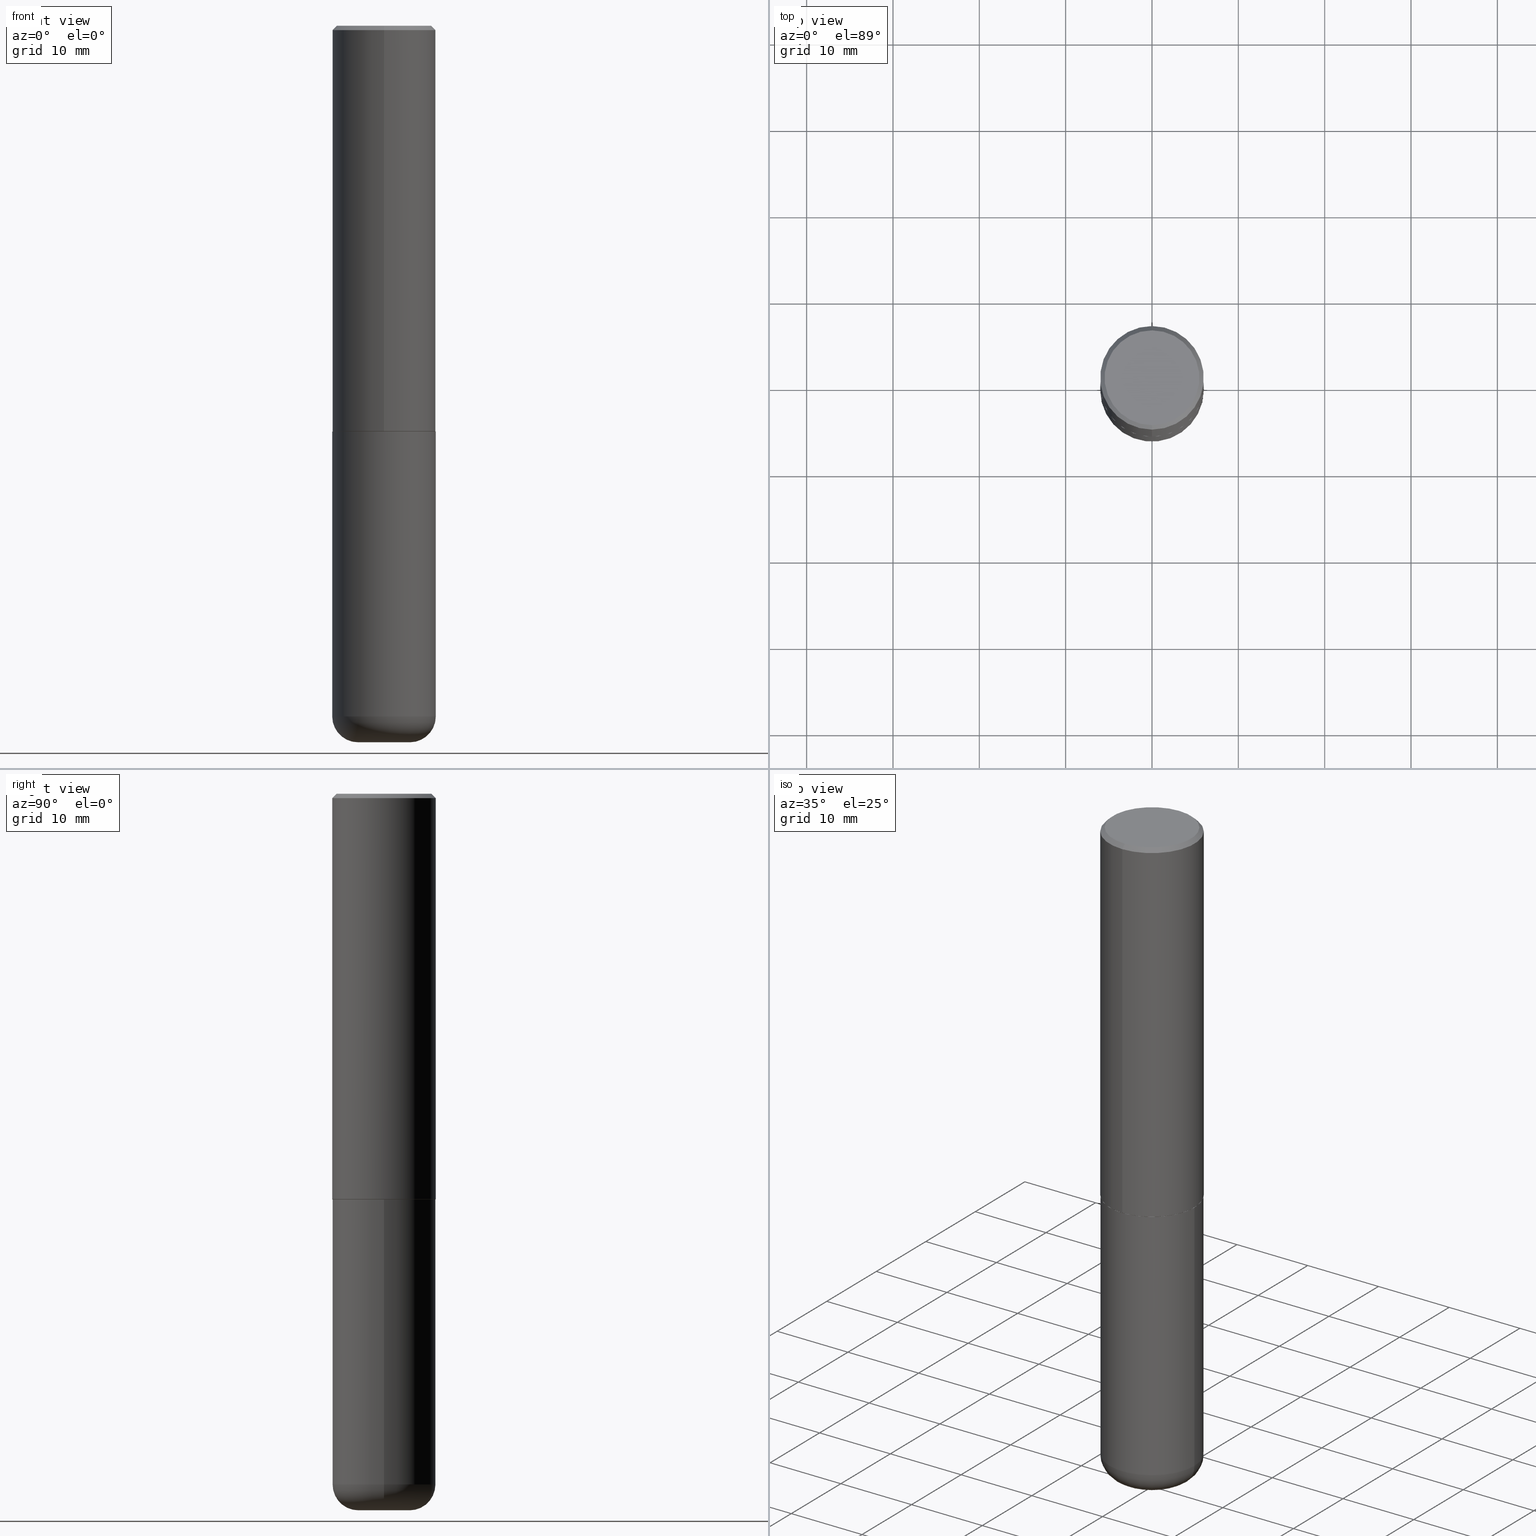
[diagram: canonical four-view strip — front | top / right | iso, engineering-drawing reading convention]
A machine part, canonical four-view strip (front | top / right | iso — engineering-drawing reading convention). The complete STEP part file that produces these views, byte-faithful:
ISO-10303-21;
HEADER;
FILE_DESCRIPTION (( 'STEP AP203' ),
    '1' );
FILE_NAME ('47558.STEP',
    '2024-03-06T11:14:41',
    ( '' ),
    ( '' ),
    'SwSTEP 2.0',
    'SolidWorks 2023',
    '' );
FILE_SCHEMA (( 'CONFIG_CONTROL_DESIGN' ));
ENDSEC;

DATA;
#1 = CC_DESIGN_SECURITY_CLASSIFICATION ( #150, ( #261 ) ) ;
#2 = DIRECTION ( 'NONE',  ( -2.445371925614294233E-29, 3.491620077334691546E-15, 1.000000000000000000 ) ) ;
#3 = DIRECTION ( 'NONE',  ( -6.982962677686265922E-15, -1.000000000000000000, 3.491620077334691152E-15 ) ) ;
#4 = DIRECTION ( 'NONE',  ( -2.445468806185136597E-29, 3.491481338843145583E-15, 1.000000000000000000 ) ) ;
#5 = DIRECTION ( 'NONE',  ( -2.445371925614294233E-29, 3.491620077334691546E-15, 1.000000000000000000 ) ) ;
#6 = CIRCLE ( 'NONE', #201, 0.1180999999999997607 ) ;
#7 = CARTESIAN_POINT ( 'NONE',  ( 1.854752379248561175E-28, 3.708345682062618425E-15, -3.267699999999999605 ) ) ;
#8 = EDGE_CURVE ( 'NONE', #283, #343, #222, .T. ) ;
#9 = DIRECTION ( 'NONE',  ( 1.000000000000000000, -6.982962677686266711E-15, 4.876176775795936353E-29 ) ) ;
#10 = LINE ( 'NONE', #97, #186 ) ;
#11 = DIRECTION ( 'NONE',  ( -1.000000000000000000, 6.982962677686265922E-15, -4.876176775795935793E-29 ) ) ;
#12 = ORIENTED_EDGE ( 'NONE', *, *, #245, .T. ) ;
#13 = AXIS2_PLACEMENT_3D ( 'NONE', #198, #318, #387 ) ;
#14 = CARTESIAN_POINT ( 'NONE',  ( 4.524916211156691287E-29, -6.460893791100115503E-15, -1.850400000000000489 ) ) ;
#15 = FACE_OUTER_BOUND ( 'NONE', #315, .T. ) ;
#16 = MECHANICAL_CONTEXT ( 'NONE', #240, 'mechanical' ) ;
#17 = CARTESIAN_POINT ( 'NONE',  ( 0.1181000000000000105, -1.223380146317249313E-14, -3.267699999999999605 ) ) ;
#18 = APPROVAL_ROLE ( '' ) ;
#19 = VECTOR ( 'NONE', #371, 39.37007874015748143 ) ;
#20 = AXIS2_PLACEMENT_3D ( 'NONE', #151, #172, #396 ) ;
#21 = EDGE_LOOP ( 'NONE', ( #51, #176 ) ) ;
#22 = CIRCLE ( 'NONE', #194, 0.2351999999999999924 ) ;
#23 = LINE ( 'NONE', #381, #39 ) ;
#24 = CARTESIAN_POINT ( 'NONE',  ( -0.1181000000000000383, -9.944215141480041685E-15, -3.267699999999999605 ) ) ;
#25 = ORIENTED_EDGE ( 'NONE', *, *, #58, .T. ) ;
#26 = EDGE_CURVE ( 'NONE', #278, #342, #32, .T. ) ;
#27 = CC_DESIGN_PERSON_AND_ORGANIZATION_ASSIGNMENT ( #110, #49, ( #261 ) ) ;
#28 = CIRCLE ( 'NONE', #20, 0.2361999999999999933 ) ;
#29 = ORIENTED_EDGE ( 'NONE', *, *, #64, .T. ) ;
#30 = DIRECTION ( 'NONE',  ( -2.445468806185136597E-29, 3.491481338843145583E-15, 1.000000000000000000 ) ) ;
#31 = DIRECTION ( 'NONE',  ( 1.000000000000000000, -6.982962677686263555E-15, 4.883557194083111780E-29 ) ) ;
#32 = LINE ( 'NONE', #414, #19 ) ;
#33 = FACE_OUTER_BOUND ( 'NONE', #317, .T. ) ;
#34 = ORIENTED_EDGE ( 'NONE', *, *, #84, .F. ) ;
#35 = ORIENTED_EDGE ( 'NONE', *, *, #341, .F. ) ;
#36 = CARTESIAN_POINT ( 'NONE',  ( -8.038070963430480451E-45, 1.147714573189292330E-30, 3.287054569996039822E-16 ) ) ;
#37 = CIRCLE ( 'NONE', #243, 0.2361999999999999933 ) ;
#38 = ORIENTED_EDGE ( 'NONE', *, *, #331, .F. ) ;
#39 = VECTOR ( 'NONE', #155, 39.37007874015748143 ) ;
#40 = CYLINDRICAL_SURFACE ( 'NONE', #263, 0.2361999999999999933 ) ;
#41 = ORIENTED_EDGE ( 'NONE', *, *, #282, .F. ) ;
#42 = FACE_OUTER_BOUND ( 'NONE', #351, .T. ) ;
#43 = EDGE_LOOP ( 'NONE', ( #406, #63, #183, #379 ) ) ;
#44 = EDGE_CURVE ( 'NONE', #190, #344, #156, .T. ) ;
#45 = CYLINDRICAL_SURFACE ( 'NONE', #281, 0.2361999999999999933 ) ;
#46 = VECTOR ( 'NONE', #350, 39.37007874015748143 ) ;
#47 = CARTESIAN_POINT ( 'NONE',  ( -1.551844647095918761E-15, -0.2161999999999996425, 1.083593717719362934E-15 ) ) ;
#48 = APPROVAL_STATUS ( 'not_yet_approved' ) ;
#49 = PERSON_AND_ORGANIZATION_ROLE ( 'design_supplier' ) ;
#50 = CC_DESIGN_DATE_AND_TIME_ASSIGNMENT ( #242, #57, ( #150 ) ) ;
#51 = ORIENTED_EDGE ( 'NONE', *, *, #382, .F. ) ;
#52 = VERTEX_POINT ( 'NONE', #280 ) ;
#53 = AXIS2_PLACEMENT_3D ( 'NONE', #307, #136, #257 ) ;
#54 = APPLICATION_PROTOCOL_DEFINITION ( 'international standard', 'config_control_design', 1994, #240 ) ;
#55 = DIRECTION ( 'NONE',  ( -2.445371925614294233E-29, 3.491620077334691546E-15, 1.000000000000000000 ) ) ;
#56 = CARTESIAN_POINT ( 'NONE',  ( -0.2361999999999999933, -7.050401405242508548E-15, -1.850400000000000267 ) ) ;
#57 = DATE_TIME_ROLE ( 'classification_date' ) ;
#58 = EDGE_CURVE ( 'NONE', #61, #190, #134, .T. ) ;
#59 = ORIENTED_EDGE ( 'NONE', *, *, #331, .T. ) ;
#60 = ORIENTED_EDGE ( 'NONE', *, *, #195, .F. ) ;
#61 = VERTEX_POINT ( 'NONE', #409 ) ;
#62 = ORIENTED_EDGE ( 'NONE', *, *, #388, .T. ) ;
#63 = ORIENTED_EDGE ( 'NONE', *, *, #337, .T. ) ;
#64 = EDGE_CURVE ( 'NONE', #283, #52, #302, .T. ) ;
#65 = CARTESIAN_POINT ( 'NONE',  ( 0.2361999999999998823, -1.264614540928986883E-14, -3.149600000000000399 ) ) ;
#66 = VERTEX_POINT ( 'NONE', #407 ) ;
#67 = PLANE ( 'NONE',  #212 ) ;
#68 = DIRECTION ( 'NONE',  ( -2.445468806185136597E-29, 3.491481338843145583E-15, 1.000000000000000000 ) ) ;
#69 = CLOSED_SHELL ( 'NONE', ( #354, #111, #364, #404, #217, #347 ) ) ;
#70 = FACE_OUTER_BOUND ( 'NONE', #43, .T. ) ;
#71 = PLANE ( 'NONE',  #385 ) ;
#72 = DIRECTION ( 'NONE',  ( 1.000000000000000000, -6.982962677686270655E-15, 0.000000000000000000 ) ) ;
#73 = CYLINDRICAL_SURFACE ( 'NONE', #348, 0.2362000000000001043 ) ;
#74 = AXIS2_PLACEMENT_3D ( 'NONE', #416, #185, #31 ) ;
#75 = PERSON_AND_ORGANIZATION ( #380, #129 ) ;
#76 = CARTESIAN_POINT ( 'NONE',  ( -1.620449627073635079E-15, -0.2362000000000000766, -0.01999999999999922673 ) ) ;
#77 = EDGE_CURVE ( 'NONE', #237, #66, #22, .T. ) ;
#78 = DATE_AND_TIME ( #214, #161 ) ;
#79 = ORIENTED_EDGE ( 'NONE', *, *, #187, .F. ) ;
#80 = PERSON_AND_ORGANIZATION ( #380, #129 ) ;
#81 = DIRECTION ( 'NONE',  ( -4.851104656540961908E-15, -0.7071067811865496822, -0.7071067811865453523 ) ) ;
#82 = AXIS2_PLACEMENT_3D ( 'NONE', #367, #209, #333 ) ;
#83 = AXIS2_PLACEMENT_3D ( 'NONE', #126, #68, #355 ) ;
#84 = EDGE_CURVE ( 'NONE', #343, #344, #215, .T. ) ;
#85 = CARTESIAN_POINT ( 'NONE',  ( 4.524916211156691287E-29, -6.460893791100115503E-15, -1.850400000000000489 ) ) ;
#86 = DIRECTION ( 'NONE',  ( -6.982962677686265133E-15, -1.000000000000000000, 3.484499991918703113E-15 ) ) ;
#87 = DIRECTION ( 'NONE',  ( -2.445371925614294233E-29, 3.491620077334691546E-15, 1.000000000000000000 ) ) ;
#88 = LOCAL_TIME ( 6, 14, 41.00000000000000000, #236 ) ;
#89 = DIRECTION ( 'NONE',  ( -2.445468806185136877E-29, 3.491481338843145188E-15, 1.000000000000000000 ) ) ;
#90 = AXIS2_PLACEMENT_3D ( 'NONE', #249, #30, #120 ) ;
#91 = PRODUCT_DEFINITION ( 'UNKNOWN', '', #261, #179 ) ;
#92 = CC_DESIGN_DATE_AND_TIME_ASSIGNMENT ( #78, #271, ( #91 ) ) ;
#93 = CARTESIAN_POINT ( 'NONE',  ( -1.649375784469452349E-15, -0.2362000000000066546, -1.849399999999999489 ) ) ;
#94 = ORIENTED_EDGE ( 'NONE', *, *, #44, .T. ) ;
#95 = ORIENTED_EDGE ( 'NONE', *, *, #412, .T. ) ;
#96 = FACE_OUTER_BOUND ( 'NONE', #218, .T. ) ;
#97 = CARTESIAN_POINT ( 'NONE',  ( -1.642392821791764560E-15, -0.2352000000000064595, -1.850399999999999823 ) ) ;
#98 = EDGE_LOOP ( 'NONE', ( #221, #188, #59, #115 ) ) ;
#99 = DIRECTION ( 'NONE',  ( -6.982962677686265922E-15, -1.000000000000000000, 3.491620077334691941E-15 ) ) ;
#100 = FACE_OUTER_BOUND ( 'NONE', #107, .T. ) ;
#101 = DIRECTION ( 'NONE',  ( 1.000000000000000000, -6.982962677686269077E-15, 0.000000000000000000 ) ) ;
#102 = CARTESIAN_POINT ( 'NONE',  ( 4.524916211156691287E-29, -6.460893791100115503E-15, -1.850400000000000489 ) ) ;
#103 = EDGE_LOOP ( 'NONE', ( #410, #79 ) ) ;
#104 = PERSON_AND_ORGANIZATION ( #380, #129 ) ;
#105 = ADVANCED_FACE ( 'NONE', ( #320 ), #252, .F. ) ;
#106 = PERSON_AND_ORGANIZATION ( #380, #129 ) ;
#107 = EDGE_LOOP ( 'NONE', ( #357, #294, #411, #360 ) ) ;
#108 = PERSON_AND_ORGANIZATION_ROLE ( 'design_owner' ) ;
#109 = ORIENTED_EDGE ( 'NONE', *, *, #238, .F. ) ;
#110 = PERSON_AND_ORGANIZATION ( #380, #129 ) ;
#111 = ADVANCED_FACE ( 'NONE', ( #338 ), #399, .T. ) ;
#112 = DIRECTION ( 'NONE',  ( -2.445371925614294233E-29, 3.491620077334691546E-15, 1.000000000000000000 ) ) ;
#113 = MANIFOLD_SOLID_BREP ( 'Body-Move/Copy2[1]', #69 ) ;
#114 = CONICAL_SURFACE ( 'NONE', #223, 0.2351999999999999924, 0.7853981633973801113 ) ;
#115 = ORIENTED_EDGE ( 'NONE', *, *, #8, .F. ) ;
#116 = DIRECTION ( 'NONE',  ( -2.445371925614294233E-29, 3.491620077334691546E-15, 1.000000000000000000 ) ) ;
#117 = DIRECTION ( 'NONE',  ( -6.982962677686265133E-15, -1.000000000000000000, 3.469747663417773847E-15 ) ) ;
#118 = AXIS2_PLACEMENT_3D ( 'NONE', #213, #55, #180 ) ;
#119 = ADVANCED_FACE ( 'NONE', ( #33 ), #375, .T. ) ;
#120 = DIRECTION ( 'NONE',  ( 1.000000000000000000, -6.982962677686263555E-15, 4.883557194083111780E-29 ) ) ;
#121 = CC_DESIGN_PERSON_AND_ORGANIZATION_ASSIGNMENT ( #339, #369, ( #150 ) ) ;
#122 = APPROVAL_PERSON_ORGANIZATION ( #182, #311, #174 ) ;
#123 = CARTESIAN_POINT ( 'NONE',  ( 0.2361999999999999933, -8.110012853864854101E-15, -1.850400000000000267 ) ) ;
#124 = CARTESIAN_POINT ( 'NONE',  ( 4.522470839231075964E-29, -6.457402171022779437E-15, -1.849400000000000155 ) ) ;
#125 = CIRCLE ( 'NONE', #330, 0.1181000000000000105 ) ;
#126 = CARTESIAN_POINT ( 'NONE',  ( 7.702248551960706711E-29, -1.099676962482037231E-14, -3.149600000000000399 ) ) ;
#127 = DIRECTION ( 'NONE',  ( -1.000000000000000000, 6.982962677686265922E-15, -4.876176775795935793E-29 ) ) ;
#128 = CARTESIAN_POINT ( 'NONE',  ( 7.991058417971169471E-29, -1.140911357093774486E-14, -3.267699999999999605 ) ) ;
#129 = ORGANIZATION ( 'UNSPECIFIED', 'UNSPECIFIED', '' ) ;
#130 = DATE_AND_TIME ( #329, #248 ) ;
#131 = CARTESIAN_POINT ( 'NONE',  ( 4.524916211156691287E-29, -6.460893791100115503E-15, -1.850400000000000489 ) ) ;
#132 = ADVANCED_FACE ( 'NONE', ( #15 ), #377, .T. ) ;
#133 = APPROVAL_DATE_TIME ( #130, #311 ) ;
#134 = CIRCLE ( 'NONE', #118, 0.2161999999999996425 ) ;
#135 = CARTESIAN_POINT ( 'NONE',  ( 4.525095478964977394E-29, -6.460637069395357576E-15, -1.850400000000000267 ) ) ;
#136 = DIRECTION ( 'NONE',  ( 2.445371925614293953E-29, -3.491620077334691546E-15, -1.000000000000000000 ) ) ;
#137 = DIRECTION ( 'NONE',  ( 1.000000000000000000, -6.982962677686272233E-15, 0.000000000000000000 ) ) ;
#138 = CARTESIAN_POINT ( 'NONE',  ( 4.890743851228601113E-31, -6.983240154669400497E-17, -0.02000000000000005246 ) ) ;
#139 = ADVANCED_FACE ( 'NONE', ( #42 ), #73, .T. ) ;
#140 = APPLICATION_PROTOCOL_DEFINITION ( 'international standard', 'config_control_design', 1994, #392 ) ;
#141 = CLOSED_SHELL ( 'NONE', ( #299, #119, #132, #319, #139, #230, #105, #286 ) ) ;
#142 = CALENDAR_DATE ( 2024, 6, 3 ) ;
#143 = AXIS2_PLACEMENT_3D ( 'NONE', #169, #292, #204 ) ;
#144 = APPROVAL_ROLE ( '' ) ;
#145 = VERTEX_POINT ( 'NONE', #24 ) ;
#146 = CARTESIAN_POINT ( 'NONE',  ( 4.522470839231075964E-29, -6.457402171022779437E-15, -1.849400000000000155 ) ) ;
#147 = DATE_AND_TIME ( #142, #88 ) ;
#148 = LOCAL_TIME ( 6, 14, 41.00000000000000000, #268 ) ;
#149 = ORIENTED_EDGE ( 'NONE', *, *, #245, .F. ) ;
#150 = SECURITY_CLASSIFICATION ( '', '', #239 ) ;
#151 = CARTESIAN_POINT ( 'NONE',  ( 4.890743851228601113E-31, -6.983240154669400497E-17, -0.02000000000000005246 ) ) ;
#152 = UNCERTAINTY_MEASURE_WITH_UNIT (LENGTH_MEASURE( 1.000000000000000082E-05 ), #231, 'distance_accuracy_value', 'NONE');
#153 = VERTEX_POINT ( 'NONE', #398 ) ;
#154 = AXIS2_PLACEMENT_3D ( 'NONE', #124, #415, #117 ) ;
#155 = DIRECTION ( 'NONE',  ( 4.937700262164545676E-15, 0.7071067811865447972, -0.7071067811865502373 ) ) ;
#156 = LINE ( 'NONE', #76, #314 ) ;
#157 = FACE_OUTER_BOUND ( 'NONE', #306, .T. ) ;
#158 = ORIENTED_EDGE ( 'NONE', *, *, #26, .F. ) ;
#159 = ORIENTED_EDGE ( 'NONE', *, *, #77, .T. ) ;
#160 = EDGE_CURVE ( 'NONE', #344, #52, #28, .T. ) ;
#161 = LOCAL_TIME ( 6, 14, 41.00000000000000000, #334 ) ;
#162 = VERTEX_POINT ( 'NONE', #17 ) ;
#163 = CIRCLE ( 'NONE', #82, 0.2361999999999999933 ) ;
#164 = FACE_OUTER_BOUND ( 'NONE', #378, .T. ) ;
#165 = CC_DESIGN_PERSON_AND_ORGANIZATION_ASSIGNMENT ( #106, #108, ( #284 ) ) ;
#166 = CIRCLE ( 'NONE', #322, 0.2362000000000000210 ) ;
#167 = CARTESIAN_POINT ( 'NONE',  ( 0.000000000000000000, 0.000000000000000000, 0.000000000000000000 ) ) ;
#168 = PRODUCT_RELATED_PRODUCT_CATEGORY ( 'detail', '', ( #284 ) ) ;
#169 = CARTESIAN_POINT ( 'NONE',  ( 4.890743851228601113E-31, -6.983240154669400497E-17, -0.02000000000000005246 ) ) ;
#170 = DIRECTION ( 'NONE',  ( 1.000000000000000000, -6.982962677686266711E-15, 4.876176775795936353E-29 ) ) ;
#171 = CIRCLE ( 'NONE', #250, 0.2351999999999999924 ) ;
#172 = DIRECTION ( 'NONE',  ( -2.445371925614294233E-29, 3.491620077334691546E-15, 1.000000000000000000 ) ) ;
#173 = APPROVAL ( #208, 'UNSPECIFIED' ) ;
#174 = APPROVAL_ROLE ( '' ) ;
#175 = DIRECTION ( 'NONE',  ( 0.000000000000000000, 0.000000000000000000, 1.000000000000000000 ) ) ;
#176 = ORIENTED_EDGE ( 'NONE', *, *, #376, .F. ) ;
#177 = AXIS2_PLACEMENT_3D ( 'NONE', #36, #191, #3 ) ;
#178 = CALENDAR_DATE ( 2024, 6, 3 ) ;
#179 = DESIGN_CONTEXT ( 'detailed design', #392, 'design' ) ;
#180 = DIRECTION ( 'NONE',  ( -6.982962677686265922E-15, -1.000000000000000000, 3.491620077334691152E-15 ) ) ;
#181 = CARTESIAN_POINT ( 'NONE',  ( -1.642392821791764560E-15, -0.2352000000000064595, -1.850399999999999823 ) ) ;
#182 = PERSON_AND_ORGANIZATION ( #380, #129 ) ;
#183 = ORIENTED_EDGE ( 'NONE', *, *, #26, .T. ) ;
#184 = ORIENTED_EDGE ( 'NONE', *, *, #160, .F. ) ;
#185 = DIRECTION ( 'NONE',  ( -2.445468806185136597E-29, 3.491481338843145583E-15, 1.000000000000000000 ) ) ;
#186 = VECTOR ( 'NONE', #358, 39.37007874015748143 ) ;
#187 = EDGE_CURVE ( 'NONE', #66, #237, #171, .T. ) ;
#188 = ORIENTED_EDGE ( 'NONE', *, *, #187, .T. ) ;
#189 = CARTESIAN_POINT ( 'NONE',  ( 0.000000000000000000, 0.000000000000000000, 0.000000000000000000 ) ) ;
#190 = VERTEX_POINT ( 'NONE', #47 ) ;
#191 = DIRECTION ( 'NONE',  ( -2.445371925614294233E-29, 3.491620077334691546E-15, 1.000000000000000000 ) ) ;
#192 = ORIENTED_EDGE ( 'NONE', *, *, #256, .T. ) ;
#193 = ORIENTED_EDGE ( 'NONE', *, *, #337, .F. ) ;
#194 = AXIS2_PLACEMENT_3D ( 'NONE', #85, #112, #244 ) ;
#195 = EDGE_CURVE ( 'NONE', #52, #344, #163, .T. ) ;
#196 = CIRCLE ( 'NONE', #13, 0.1180999999999997607 ) ;
#197 = EDGE_LOOP ( 'NONE', ( #210, #324, #255, #211 ) ) ;
#198 = CARTESIAN_POINT ( 'NONE',  ( -0.1180999999999999966, -1.015761865388769332E-14, -3.149600000000000399 ) ) ;
#199 = PRODUCT_DEFINITION_SHAPE ( 'NONE', 'NONE',  #91 ) ;
#200 = CARTESIAN_POINT ( 'NONE',  ( 0.1180999999999999966, -1.182145751705512057E-14, -3.149600000000000399 ) ) ;
#201 = AXIS2_PLACEMENT_3D ( 'NONE', #200, #264, #72 ) ;
#202 = FACE_OUTER_BOUND ( 'NONE', #397, .T. ) ;
#203 = CARTESIAN_POINT ( 'NONE',  ( 0.000000000000000000, 0.000000000000000000, 0.000000000000000000 ) ) ;
#204 = DIRECTION ( 'NONE',  ( 6.982962677686265922E-15, 1.000000000000000000, -3.487819265831411744E-15 ) ) ;
#205 = APPROVAL ( #48, 'UNSPECIFIED' ) ;
#206 = CIRCLE ( 'NONE', #154, 0.2362000000000002153 ) ;
#207 = DIRECTION ( 'NONE',  ( -2.445371925614293953E-29, 3.491620077334691546E-15, 1.000000000000000000 ) ) ;
#208 = APPROVAL_STATUS ( 'not_yet_approved' ) ;
#209 = DIRECTION ( 'NONE',  ( -2.445371925614294233E-29, 3.491620077334691546E-15, 1.000000000000000000 ) ) ;
#210 = ORIENTED_EDGE ( 'NONE', *, *, #382, .T. ) ;
#211 = ORIENTED_EDGE ( 'NONE', *, *, #395, .F. ) ;
#212 = AXIS2_PLACEMENT_3D ( 'NONE', #7, #391, #127 ) ;
#213 = CARTESIAN_POINT ( 'NONE',  ( -8.038070963430480451E-45, 1.147714573189292330E-30, 3.287054569996039822E-16 ) ) ;
#214 = CALENDAR_DATE ( 2024, 6, 3 ) ;
#215 = LINE ( 'NONE', #216, #366 ) ;
#216 = CARTESIAN_POINT ( 'NONE',  ( -1.649375784469496722E-15, -0.2362000000000001043, 8.247206622664545710E-16 ) ) ;
#217 = ADVANCED_FACE ( 'NONE', ( #164 ), #390, .T. ) ;
#218 = EDGE_LOOP ( 'NONE', ( #95, #192, #41, #158 ) ) ;
#219 = DIRECTION ( 'NONE',  ( -6.982962677686265922E-15, -1.000000000000000000, 3.491620077334691546E-15 ) ) ;
#220 = ORIENTED_EDGE ( 'NONE', *, *, #395, .T. ) ;
#221 = ORIENTED_EDGE ( 'NONE', *, *, #303, .F. ) ;
#222 = CIRCLE ( 'NONE', #241, 0.2362000000000002153 ) ;
#223 = AXIS2_PLACEMENT_3D ( 'NONE', #14, #2, #323 ) ;
#224 = EDGE_CURVE ( 'NONE', #61, #52, #23, .T. ) ;
#225 = DIRECTION ( 'NONE',  ( -2.445468806185136597E-29, 3.491481338843145583E-15, 1.000000000000000000 ) ) ;
#226 = ORIENTED_EDGE ( 'NONE', *, *, #84, .T. ) ;
#227 = ADVANCED_BREP_SHAPE_REPRESENTATION ( '47558', ( #113, #267, #368 ), #297 ) ;
#228 = CIRCLE ( 'NONE', #177, 0.2161999999999996425 ) ;
#229 = DIRECTION ( 'NONE',  ( -2.445468806185136597E-29, 3.491481338843145583E-15, 1.000000000000000000 ) ) ;
#230 = ADVANCED_FACE ( 'NONE', ( #279 ), #373, .T. ) ;
#231 =( CONVERSION_BASED_UNIT ( 'INCH', #325 ) LENGTH_UNIT ( ) NAMED_UNIT ( #251 ) );
#232 = DIRECTION ( 'NONE',  ( -2.445371925614294233E-29, 3.491620077334691546E-15, 1.000000000000000000 ) ) ;
#233 = PERSON_AND_ORGANIZATION_ROLE ( 'creator' ) ;
#234 = AXIS2_PLACEMENT_3D ( 'NONE', #138, #394, #327 ) ;
#235 = VERTEX_POINT ( 'NONE', #56 ) ;
#236 = COORDINATED_UNIVERSAL_TIME_OFFSET ( 5, 0, .BEHIND. ) ;
#237 = VERTEX_POINT ( 'NONE', #181 ) ;
#238 = EDGE_CURVE ( 'NONE', #190, #61, #228, .T. ) ;
#239 = SECURITY_CLASSIFICATION_LEVEL ( 'unclassified' ) ;
#240 = APPLICATION_CONTEXT ( 'configuration controlled 3d designs of mechanical parts and assemblies' ) ;
#241 = AXIS2_PLACEMENT_3D ( 'NONE', #146, #272, #403 ) ;
#242 = DATE_AND_TIME ( #273, #312 ) ;
#243 = AXIS2_PLACEMENT_3D ( 'NONE', #135, #352, #266 ) ;
#244 = DIRECTION ( 'NONE',  ( -6.982962677686265133E-15, -1.000000000000000000, 3.484499991918703113E-15 ) ) ;
#245 = EDGE_CURVE ( 'NONE', #343, #283, #206, .T. ) ;
#246 = APPROVAL_PERSON_ORGANIZATION ( #75, #173, #144 ) ;
#247 = LINE ( 'NONE', #313, #296 ) ;
#248 = LOCAL_TIME ( 6, 14, 41.00000000000000000, #400 ) ;
#249 = CARTESIAN_POINT ( 'NONE',  ( 7.702248551960706711E-29, -1.099676962482037231E-14, -3.149600000000000399 ) ) ;
#250 = AXIS2_PLACEMENT_3D ( 'NONE', #102, #232, #365 ) ;
#251 = DIMENSIONAL_EXPONENTS ( 1.000000000000000000, 0.000000000000000000, 0.000000000000000000, 0.000000000000000000, 0.000000000000000000, 0.000000000000000000, 0.000000000000000000 ) ;
#252 = PLANE ( 'NONE',  #316 ) ;
#253 = ORIENTED_EDGE ( 'NONE', *, *, #303, .T. ) ;
#254 = AXIS2_PLACEMENT_3D ( 'NONE', #258, #225, #137 ) ;
#255 = ORIENTED_EDGE ( 'NONE', *, *, #412, .F. ) ;
#256 = EDGE_CURVE ( 'NONE', #153, #235, #247, .T. ) ;
#257 = DIRECTION ( 'NONE',  ( 6.982962677686265922E-15, 1.000000000000000000, -3.491620077334691546E-15 ) ) ;
#258 = CARTESIAN_POINT ( 'NONE',  ( 7.991058417971169471E-29, -1.140911357093774486E-14, -3.267699999999999605 ) ) ;
#259 = FACE_OUTER_BOUND ( 'NONE', #274, .T. ) ;
#260 = SHAPE_DEFINITION_REPRESENTATION ( #199, #227 ) ;
#261 = PRODUCT_DEFINITION_FORMATION_WITH_SPECIFIED_SOURCE ( 'ANY', '', #284, .NOT_KNOWN. ) ;
#262 = DIRECTION ( 'NONE',  ( -2.445468806185136597E-29, 3.491481338843145583E-15, 1.000000000000000000 ) ) ;
#263 = AXIS2_PLACEMENT_3D ( 'NONE', #167, #290, #9 ) ;
#264 = DIRECTION ( 'NONE',  ( -6.982962677686266711E-15, -1.000000000000000000, 3.491481338843145583E-15 ) ) ;
#265 = LINE ( 'NONE', #288, #46 ) ;
#266 = DIRECTION ( 'NONE',  ( 1.000000000000000000, -6.982962677686269077E-15, 0.000000000000000000 ) ) ;
#267 = MANIFOLD_SOLID_BREP ( 'Body-Move/Copy2[2]', #141 ) ;
#268 = COORDINATED_UNIVERSAL_TIME_OFFSET ( 5, 0, .BEHIND. ) ;
#269 = APPROVAL_DATE_TIME ( #147, #205 ) ;
#270 = CC_DESIGN_PERSON_AND_ORGANIZATION_ASSIGNMENT ( #80, #401, ( #261 ) ) ;
#271 = DATE_TIME_ROLE ( 'creation_date' ) ;
#272 = DIRECTION ( 'NONE',  ( -2.445371925614294233E-29, 3.491620077334691546E-15, 1.000000000000000000 ) ) ;
#273 = CALENDAR_DATE ( 2024, 6, 3 ) ;
#274 = EDGE_LOOP ( 'NONE', ( #159, #253, #149, #38 ) ) ;
#275 = CC_DESIGN_PERSON_AND_ORGANIZATION_ASSIGNMENT ( #104, #233, ( #91 ) ) ;
#276 = CIRCLE ( 'NONE', #408, 0.2361999999999999933 ) ;
#277 = ORIENTED_EDGE ( 'NONE', *, *, #8, .T. ) ;
#278 = VERTEX_POINT ( 'NONE', #65 ) ;
#279 = FACE_OUTER_BOUND ( 'NONE', #98, .T. ) ;
#280 = CARTESIAN_POINT ( 'NONE',  ( 1.649375784469496525E-15, 0.2361999999999999378, -0.02000000000000087472 ) ) ;
#281 = AXIS2_PLACEMENT_3D ( 'NONE', #203, #229, #170 ) ;
#282 = EDGE_CURVE ( 'NONE', #342, #235, #276, .T. ) ;
#283 = VERTEX_POINT ( 'NONE', #362 ) ;
#284 = PRODUCT ( '47558', '47558', '', ( #16 ) ) ;
#285 = DIRECTION ( 'NONE',  ( 1.000000000000000000, -6.982962677686264344E-15, 0.000000000000000000 ) ) ;
#286 = ADVANCED_FACE ( 'NONE', ( #157 ), #310, .F. ) ;
#287 =( NAMED_UNIT ( * ) PLANE_ANGLE_UNIT ( ) SI_UNIT ( $, .RADIAN. ) );
#288 = CARTESIAN_POINT ( 'NONE',  ( 1.671196514507800548E-15, 0.2351999999999935531, -1.850400000000001377 ) ) ;
#289 = AXIS2_PLACEMENT_3D ( 'NONE', #309, #356, #99 ) ;
#290 = DIRECTION ( 'NONE',  ( -2.445468806185136597E-29, 3.491481338843145583E-15, 1.000000000000000000 ) ) ;
#291 =( NAMED_UNIT ( * ) SI_UNIT ( $, .STERADIAN. ) SOLID_ANGLE_UNIT ( ) );
#292 = DIRECTION ( 'NONE',  ( 2.445371925614294233E-29, -3.491620077334691546E-15, -1.000000000000000000 ) ) ;
#293 = DIRECTION ( 'NONE',  ( -2.445468806185136597E-29, 3.491481338843145583E-15, 1.000000000000000000 ) ) ;
#294 = ORIENTED_EDGE ( 'NONE', *, *, #58, .F. ) ;
#295 = ORIENTED_EDGE ( 'NONE', *, *, #376, .T. ) ;
#296 = VECTOR ( 'NONE', #89, 39.37007874015748143 ) ;
#297 =( GEOMETRIC_REPRESENTATION_CONTEXT ( 3 ) GLOBAL_UNCERTAINTY_ASSIGNED_CONTEXT ( ( #152 ) ) GLOBAL_UNIT_ASSIGNED_CONTEXT ( ( #231, #287, #291 ) ) REPRESENTATION_CONTEXT ( 'NONE', 'WORKASPACE' ) );
#298 = DATE_AND_TIME ( #178, #148 ) ;
#299 = ADVANCED_FACE ( 'NONE', ( #259 ), #114, .T. ) ;
#300 = DIRECTION ( 'NONE',  ( 1.000000000000000000, 0.000000000000000000, 0.000000000000000000 ) ) ;
#301 = CIRCLE ( 'NONE', #254, 0.1181000000000000105 ) ;
#302 = LINE ( 'NONE', #374, #370 ) ;
#303 = EDGE_CURVE ( 'NONE', #66, #283, #265, .T. ) ;
#304 = APPROVAL_STATUS ( 'not_yet_approved' ) ;
#305 = CC_DESIGN_APPROVAL ( #205, ( #261 ) ) ;
#306 = EDGE_LOOP ( 'NONE', ( #25, #383 ) ) ;
#307 = CARTESIAN_POINT ( 'NONE',  ( 1.509716530915768154E-15, 0.2161999999999996425, -5.905355322199570835E-16 ) ) ;
#308 = AXIS2_PLACEMENT_3D ( 'NONE', #413, #116, #86 ) ;
#309 = CARTESIAN_POINT ( 'NONE',  ( 0.000000000000000000, 0.000000000000000000, 0.000000000000000000 ) ) ;
#310 = PLANE ( 'NONE',  #53 ) ;
#311 = APPROVAL ( #304, 'UNSPECIFIED' ) ;
#312 = LOCAL_TIME ( 6, 14, 41.00000000000000000, #336 ) ;
#313 = CARTESIAN_POINT ( 'NONE',  ( -0.2361999999999999933, 1.678301941865356591E-15, -1.161852468318208757E-29 ) ) ;
#314 = VECTOR ( 'NONE', #81, 39.37007874015748143 ) ;
#315 = EDGE_LOOP ( 'NONE', ( #109, #94, #345, #335 ) ) ;
#316 = AXIS2_PLACEMENT_3D ( 'NONE', #131, #207, #219 ) ;
#317 = EDGE_LOOP ( 'NONE', ( #12, #29, #184, #34 ) ) ;
#318 = DIRECTION ( 'NONE',  ( 7.105427357601001859E-15, 1.000000000000000000, -3.491481338843145583E-15 ) ) ;
#319 = ADVANCED_FACE ( 'NONE', ( #100 ), #417, .T. ) ;
#320 = FACE_OUTER_BOUND ( 'NONE', #103, .T. ) ;
#321 = CARTESIAN_POINT ( 'NONE',  ( -1.620449627073635079E-15, -0.2362000000000000766, -0.01999999999999922673 ) ) ;
#322 = AXIS2_PLACEMENT_3D ( 'NONE', #359, #262, #285 ) ;
#323 = DIRECTION ( 'NONE',  ( -6.982962677686265133E-15, -1.000000000000000000, 3.484499991918703113E-15 ) ) ;
#324 = ORIENTED_EDGE ( 'NONE', *, *, #341, .T. ) ;
#325 = LENGTH_MEASURE_WITH_UNIT ( LENGTH_MEASURE( 0.02539999999999999897 ), #393 );
#326 = DIRECTION ( 'NONE',  ( 2.438088387897960049E-29, -3.491481338843145188E-15, -1.000000000000000000 ) ) ;
#327 = DIRECTION ( 'NONE',  ( 6.982962677686265922E-15, 1.000000000000000000, -3.487819265831411744E-15 ) ) ;
#328 = CARTESIAN_POINT ( 'NONE',  ( 4.525095478964977394E-29, -6.460637069395357576E-15, -1.850400000000000267 ) ) ;
#329 = CALENDAR_DATE ( 2024, 6, 3 ) ;
#330 = AXIS2_PLACEMENT_3D ( 'NONE', #128, #4, #349 ) ;
#331 = EDGE_CURVE ( 'NONE', #237, #343, #10, .T. ) ;
#332 = PERSON_AND_ORGANIZATION ( #380, #129 ) ;
#333 = DIRECTION ( 'NONE',  ( -6.982962677686265922E-15, -1.000000000000000000, 3.487819265831411744E-15 ) ) ;
#334 = COORDINATED_UNIVERSAL_TIME_OFFSET ( 5, 0, .BEHIND. ) ;
#335 = ORIENTED_EDGE ( 'NONE', *, *, #224, .F. ) ;
#336 = COORDINATED_UNIVERSAL_TIME_OFFSET ( 5, 0, .BEHIND. ) ;
#337 = EDGE_CURVE ( 'NONE', #153, #278, #166, .T. ) ;
#338 = FACE_OUTER_BOUND ( 'NONE', #197, .T. ) ;
#339 = PERSON_AND_ORGANIZATION ( #380, #129 ) ;
#340 = DIRECTION ( 'NONE',  ( -2.445371925614294233E-29, 3.491620077334691546E-15, 1.000000000000000000 ) ) ;
#341 = EDGE_CURVE ( 'NONE', #145, #153, #196, .T. ) ;
#342 = VERTEX_POINT ( 'NONE', #123 ) ;
#343 = VERTEX_POINT ( 'NONE', #93 ) ;
#344 = VERTEX_POINT ( 'NONE', #321 ) ;
#345 = ORIENTED_EDGE ( 'NONE', *, *, #160, .T. ) ;
#346 = ORIENTED_EDGE ( 'NONE', *, *, #64, .F. ) ;
#347 = ADVANCED_FACE ( 'NONE', ( #386 ), #67, .T. ) ;
#348 = AXIS2_PLACEMENT_3D ( 'NONE', #189, #5, #418 ) ;
#349 = DIRECTION ( 'NONE',  ( 1.000000000000000000, -6.982962677686272233E-15, 0.000000000000000000 ) ) ;
#350 = DIRECTION ( 'NONE',  ( 5.024295867787719235E-15, 0.7071067811865017205, 0.7071067811865933139 ) ) ;
#351 = EDGE_LOOP ( 'NONE', ( #346, #277, #226, #60 ) ) ;
#352 = DIRECTION ( 'NONE',  ( -2.445468806185136597E-29, 3.491481338843145583E-15, 1.000000000000000000 ) ) ;
#353 = CIRCLE ( 'NONE', #83, 0.2362000000000000210 ) ;
#354 = ADVANCED_FACE ( 'NONE', ( #96 ), #40, .T. ) ;
#355 = DIRECTION ( 'NONE',  ( 1.000000000000000000, -6.982962677686264344E-15, 0.000000000000000000 ) ) ;
#356 = DIRECTION ( 'NONE',  ( -2.445371925614294233E-29, 3.491620077334691546E-15, 1.000000000000000000 ) ) ;
#357 = ORIENTED_EDGE ( 'NONE', *, *, #44, .F. ) ;
#358 = DIRECTION ( 'NONE',  ( -4.937700262164211199E-15, -0.7071067811864968355, 0.7071067811865981989 ) ) ;
#359 = CARTESIAN_POINT ( 'NONE',  ( 7.702248551960706711E-29, -1.099676962482037231E-14, -3.149600000000000399 ) ) ;
#360 = ORIENTED_EDGE ( 'NONE', *, *, #195, .T. ) ;
#361 = CC_DESIGN_APPROVAL ( #173, ( #91 ) ) ;
#362 = CARTESIAN_POINT ( 'NONE',  ( 1.678301941865380454E-15, 0.2361999999999937760, -1.849400000000001043 ) ) ;
#363 = CC_DESIGN_APPROVAL ( #311, ( #150 ) ) ;
#364 = ADVANCED_FACE ( 'NONE', ( #202 ), #71, .F. ) ;
#365 = DIRECTION ( 'NONE',  ( -6.982962677686265133E-15, -1.000000000000000000, 3.484499991918703113E-15 ) ) ;
#366 = VECTOR ( 'NONE', #340, 39.37007874015748143 ) ;
#367 = CARTESIAN_POINT ( 'NONE',  ( 4.890743851228601113E-31, -6.983240154669400497E-17, -0.02000000000000005246 ) ) ;
#368 = AXIS2_PLACEMENT_3D ( 'NONE', #405, #175, #300 ) ;
#369 = PERSON_AND_ORGANIZATION_ROLE ( 'classification_officer' ) ;
#370 = VECTOR ( 'NONE', #87, 39.37007874015748143 ) ;
#371 = DIRECTION ( 'NONE',  ( -2.445468806185136877E-29, 3.491481338843145188E-15, 1.000000000000000000 ) ) ;
#372 = APPROVAL_DATE_TIME ( #298, #173 ) ;
#373 = CONICAL_SURFACE ( 'NONE', #308, 0.2351999999999999924, 0.7853981633973801113 ) ;
#374 = CARTESIAN_POINT ( 'NONE',  ( 1.678301941865357183E-15, 0.2362000000000001043, -8.247206622664545710E-16 ) ) ;
#375 = CYLINDRICAL_SURFACE ( 'NONE', #289, 0.2362000000000001043 ) ;
#376 = EDGE_CURVE ( 'NONE', #145, #162, #125, .T. ) ;
#377 = CONICAL_SURFACE ( 'NONE', #234, 0.2361999999999999933, 0.7853981633974479459 ) ;
#378 = EDGE_LOOP ( 'NONE', ( #35, #295, #220, #193 ) ) ;
#379 = ORIENTED_EDGE ( 'NONE', *, *, #388, .F. ) ;
#380 = PERSON ( 'UNSPECIFIED', 'UNSPECIFIED', 'UNSPECIFIED', ('UNSPECIFIED'), ('UNSPECIFIED'), ('UNSPECIFIED') ) ;
#381 = CARTESIAN_POINT ( 'NONE',  ( 1.649375784469496525E-15, 0.2361999999999999378, -0.02000000000000087472 ) ) ;
#382 = EDGE_CURVE ( 'NONE', #162, #145, #301, .T. ) ;
#383 = ORIENTED_EDGE ( 'NONE', *, *, #238, .T. ) ;
#384 = CARTESIAN_POINT ( 'NONE',  ( 4.525095478964977394E-29, -6.460637069395357576E-15, -1.850400000000000267 ) ) ;
#385 = AXIS2_PLACEMENT_3D ( 'NONE', #328, #326, #11 ) ;
#386 = FACE_OUTER_BOUND ( 'NONE', #21, .T. ) ;
#387 = DIRECTION ( 'NONE',  ( -1.000000000000000000, 7.105427357601001859E-15, 0.000000000000000000 ) ) ;
#388 = EDGE_CURVE ( 'NONE', #235, #342, #37, .T. ) ;
#389 = APPROVAL_PERSON_ORGANIZATION ( #332, #205, #18 ) ;
#390 = TOROIDAL_SURFACE ( 'NONE', #74, 0.1180999999999999966, 0.1180999999999997607 ) ;
#391 = DIRECTION ( 'NONE',  ( 2.438088387897960049E-29, -3.491481338843145188E-15, -1.000000000000000000 ) ) ;
#392 = APPLICATION_CONTEXT ( 'configuration controlled 3d designs of mechanical parts and assemblies' ) ;
#393 =( LENGTH_UNIT ( ) NAMED_UNIT ( * ) SI_UNIT ( $, .METRE. ) );
#394 = DIRECTION ( 'NONE',  ( 2.445371925614294233E-29, -3.491620077334691546E-15, -1.000000000000000000 ) ) ;
#395 = EDGE_CURVE ( 'NONE', #162, #278, #6, .T. ) ;
#396 = DIRECTION ( 'NONE',  ( -6.982962677686265922E-15, -1.000000000000000000, 3.487819265831411744E-15 ) ) ;
#397 = EDGE_LOOP ( 'NONE', ( #402, #62 ) ) ;
#398 = CARTESIAN_POINT ( 'NONE',  ( -0.2361999999999998823, -9.318467682955017493E-15, -3.149600000000000399 ) ) ;
#399 = TOROIDAL_SURFACE ( 'NONE', #90, 0.1180999999999999966, 0.1180999999999997607 ) ;
#400 = COORDINATED_UNIVERSAL_TIME_OFFSET ( 5, 0, .BEHIND. ) ;
#401 = PERSON_AND_ORGANIZATION_ROLE ( 'creator' ) ;
#402 = ORIENTED_EDGE ( 'NONE', *, *, #282, .T. ) ;
#403 = DIRECTION ( 'NONE',  ( -6.982962677686265133E-15, -1.000000000000000000, 3.469747663417773847E-15 ) ) ;
#404 = ADVANCED_FACE ( 'NONE', ( #70 ), #45, .T. ) ;
#405 = CARTESIAN_POINT ( 'NONE',  ( 0.000000000000000000, 0.000000000000000000, 0.000000000000000000 ) ) ;
#406 = ORIENTED_EDGE ( 'NONE', *, *, #256, .F. ) ;
#407 = CARTESIAN_POINT ( 'NONE',  ( 1.674749228186601644E-15, 0.2351999999999935531, -1.850400000000001377 ) ) ;
#408 = AXIS2_PLACEMENT_3D ( 'NONE', #384, #293, #101 ) ;
#409 = CARTESIAN_POINT ( 'NONE',  ( 1.579546157692632438E-15, 0.2161999999999996425, -4.261828037201549199E-16 ) ) ;
#410 = ORIENTED_EDGE ( 'NONE', *, *, #77, .F. ) ;
#411 = ORIENTED_EDGE ( 'NONE', *, *, #224, .T. ) ;
#412 = EDGE_CURVE ( 'NONE', #278, #153, #353, .T. ) ;
#413 = CARTESIAN_POINT ( 'NONE',  ( 4.524916211156691287E-29, -6.460893791100115503E-15, -1.850400000000000489 ) ) ;
#414 = CARTESIAN_POINT ( 'NONE',  ( 0.2361999999999999933, -1.649375784469496131E-15, 1.151752954443000088E-29 ) ) ;
#415 = DIRECTION ( 'NONE',  ( -2.445371925614294233E-29, 3.491620077334691546E-15, 1.000000000000000000 ) ) ;
#416 = CARTESIAN_POINT ( 'NONE',  ( 7.702248551960706711E-29, -1.099676962482037231E-14, -3.149600000000000399 ) ) ;
#417 = CONICAL_SURFACE ( 'NONE', #143, 0.2361999999999999933, 0.7853981633974479459 ) ;
#418 = DIRECTION ( 'NONE',  ( -6.982962677686265922E-15, -1.000000000000000000, 3.491620077334691941E-15 ) ) ;
ENDSEC;
END-ISO-10303-21;
